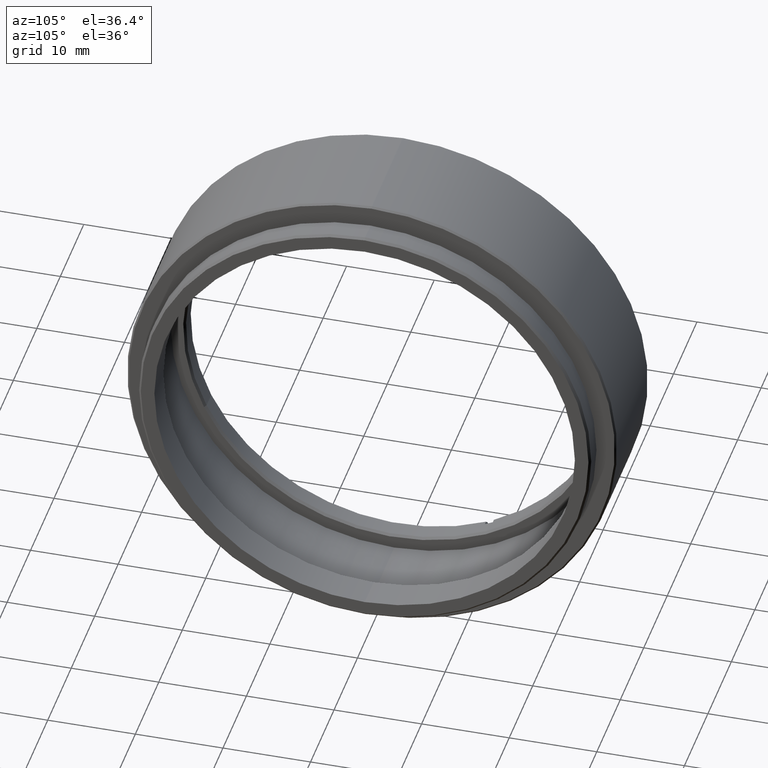
[diagram: clean part render]
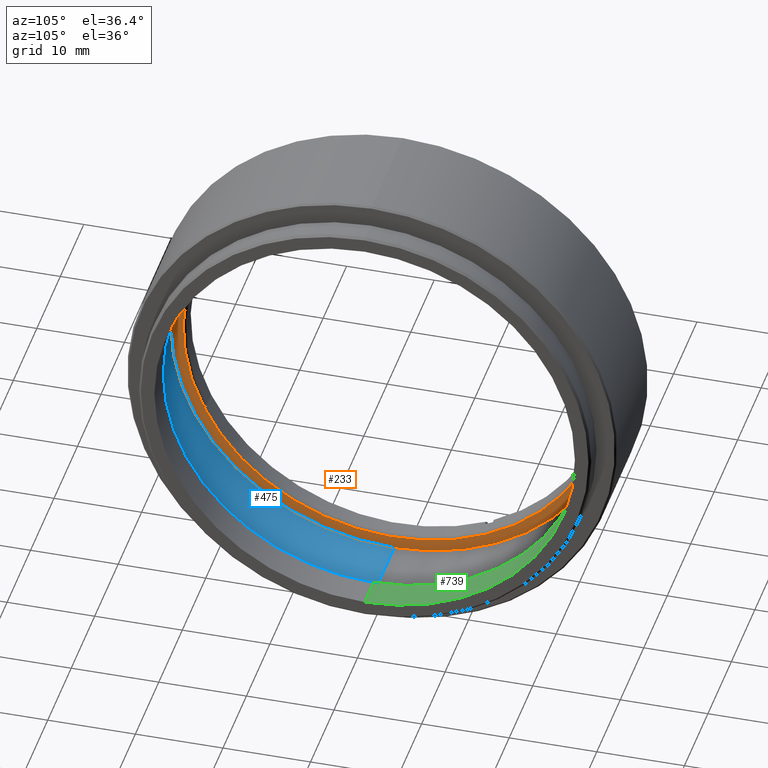
[diagram: same view with three faces highlighted in distinct colors, each labeled with its STEP entity id]
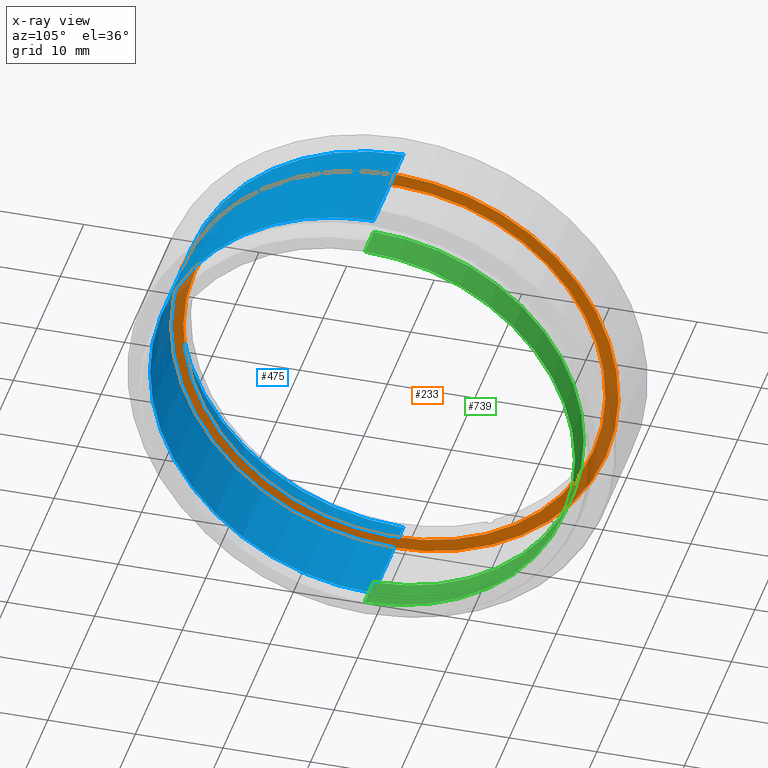
[diagram: x-ray of the same camera — body ghosted, the three highlighted faces saturated]
A machine part, auxiliary view with three faces highlighted in distinct colors.
The next image is the same camera in x-ray (body ghosted, the three faces saturated) — at least one of them is partly hidden behind the body in this view.
Their STEP definitions:

[orange] entity #233 — the highlighted planar face has unit normal (-1, -0, 0).
#9 = CARTESIAN_POINT ( 'NONE',  ( -6.107049834566915081, 2.965124241844183217, 11.07623574862166294 ) ) ;
#33 = VERTEX_POINT ( 'NONE', #480 ) ;
#35 = CARTESIAN_POINT ( 'NONE',  ( -6.107049834566915081, -20.10857142857141966, -3.286487835346685316E-16 ) ) ;
#54 = VERTEX_POINT ( 'NONE', #1538 ) ;
#99 = DIRECTION ( 'NONE',  ( 1.000000000000000000, -0.000000000000000000, -0.000000000000000000 ) ) ;
#105 = DIRECTION ( 'NONE',  ( 0.000000000000000000, -0.9015099208976772305, -0.4327584343754188878 ) ) ;
#133 = EDGE_CURVE ( 'NONE', #625, #54, #1150, .T. ) ;
#233 = ADVANCED_FACE ( 'NONE', ( #406, #587 ), #292, .F. ) ;
#270 = CARTESIAN_POINT ( 'NONE',  ( -6.107049834566915081, -20.10857142857141966, -3.286487835346685316E-16 ) ) ;
#292 = PLANE ( 'NONE',  #1242 ) ;
#366 = DIRECTION ( 'NONE',  ( 0.000000000000000000, -0.9015099208976772305, -0.4327584343754188323 ) ) ;
#401 = DIRECTION ( 'NONE',  ( -1.000000000000000000, -0.000000000000000000, 0.000000000000000000 ) ) ;
#406 = FACE_BOUND ( 'NONE', #1586, .T. ) ;
#419 = EDGE_CURVE ( 'NONE', #607, #33, #1309, .T. ) ;
#478 = EDGE_CURVE ( 'NONE', #54, #625, #1261, .T. ) ;
#480 = CARTESIAN_POINT ( 'NONE',  ( -6.107049834566915081, -43.18226709898702609, -11.07623574862165938 ) ) ;
#531 = DIRECTION ( 'NONE',  ( 0.000000000000000000, -0.9015099208976772305, -0.4327584343754188878 ) ) ;
#541 = DIRECTION ( 'NONE',  ( -1.000000000000000000, 0.000000000000000000, 0.000000000000000000 ) ) ;
#587 = FACE_OUTER_BOUND ( 'NONE', #1652, .T. ) ;
#607 = VERTEX_POINT ( 'NONE', #9 ) ;
#621 = CARTESIAN_POINT ( 'NONE',  ( -6.107049834566915081, -20.10857142857141966, -3.286487835346685316E-16 ) ) ;
#625 = VERTEX_POINT ( 'NONE', #673 ) ;
#628 = CARTESIAN_POINT ( 'NONE',  ( -6.107049834566915081, -20.10857142857141966, -3.286487835346685316E-16 ) ) ;
#673 = CARTESIAN_POINT ( 'NONE',  ( -6.107049834566915081, -41.83000221764049797, -10.42709809705852742 ) ) ;
#833 = ORIENTED_EDGE ( 'NONE', *, *, #133, .T. ) ;
#863 = DIRECTION ( 'NONE',  ( -1.000000000000000000, 0.000000000000000000, 0.000000000000000000 ) ) ;
#874 = CARTESIAN_POINT ( 'NONE',  ( -6.107049834566915081, -20.10857142857141966, -3.286487835346685316E-16 ) ) ;
#884 = ORIENTED_EDGE ( 'NONE', *, *, #419, .T. ) ;
#907 = ORIENTED_EDGE ( 'NONE', *, *, #478, .T. ) ;
#922 = AXIS2_PLACEMENT_3D ( 'NONE', #621, #99, #366 ) ;
#937 = CIRCLE ( 'NONE', #922, 25.59450000000000358 ) ;
#987 = EDGE_CURVE ( 'NONE', #33, #607, #937, .T. ) ;
#1010 = AXIS2_PLACEMENT_3D ( 'NONE', #628, #1126, #1115 ) ;
#1115 = DIRECTION ( 'NONE',  ( 0.000000000000000000, -0.9015099208976772305, -0.4327584343754188323 ) ) ;
#1126 = DIRECTION ( 'NONE',  ( 1.000000000000000000, -0.000000000000000000, -0.000000000000000000 ) ) ;
#1150 = CIRCLE ( 'NONE', #1220, 24.09449999999999648 ) ;
#1151 = AXIS2_PLACEMENT_3D ( 'NONE', #874, #863, #105 ) ;
#1220 = AXIS2_PLACEMENT_3D ( 'NONE', #35, #541, #531 ) ;
#1242 = AXIS2_PLACEMENT_3D ( 'NONE', #270, #401, #1439 ) ;
#1261 = CIRCLE ( 'NONE', #1151, 24.09449999999999648 ) ;
#1309 = CIRCLE ( 'NONE', #1010, 25.59450000000000358 ) ;
#1439 = DIRECTION ( 'NONE',  ( 0.000000000000000000, -0.9015099208976771195, -0.4327584343754188323 ) ) ;
#1504 = ORIENTED_EDGE ( 'NONE', *, *, #987, .T. ) ;
#1538 = CARTESIAN_POINT ( 'NONE',  ( -6.107049834566915081, 1.612859360497660655, 10.42709809705852919 ) ) ;
#1586 = EDGE_LOOP ( 'NONE', ( #907, #833 ) ) ;
#1652 = EDGE_LOOP ( 'NONE', ( #1504, #884 ) ) ;

[blue] entity #475 — the highlighted cylindrical surface (partial cylindrical patch) has radius 25.525 mm, axis along (1, -0, -0).
#201 = ORIENTED_EDGE ( 'NONE', *, *, #1546, .T. ) ;
#231 = CARTESIAN_POINT ( 'NONE',  ( -9.974000000000017963, -20.10857142857141966, 0.000000000000000000 ) ) ;
#236 = CARTESIAN_POINT ( 'NONE',  ( -9.974000000000017963, -20.10857142857141966, 0.000000000000000000 ) ) ;
#253 = CARTESIAN_POINT ( 'NONE',  ( 2.725999999999982659, -20.10857142857141966, -25.52499999999999858 ) ) ;
#286 = CARTESIAN_POINT ( 'NONE',  ( 2.725999999999982659, -20.10857142857141611, 25.52499999999999858 ) ) ;
#287 = VERTEX_POINT ( 'NONE', #307 ) ;
#297 = LINE ( 'NONE', #1166, #1210 ) ;
#307 = CARTESIAN_POINT ( 'NONE',  ( -9.974000000000017963, -20.10857142857141611, 25.52499999999999858 ) ) ;
#318 = DIRECTION ( 'NONE',  ( -1.000000000000000000, 0.000000000000000000, 0.000000000000000000 ) ) ;
#319 = EDGE_LOOP ( 'NONE', ( #1541, #201, #906, #1466 ) ) ;
#415 = CARTESIAN_POINT ( 'NONE',  ( -9.974000000000017963, -20.10857142857141966, -25.52499999999999858 ) ) ;
#475 = ADVANCED_FACE ( 'NONE', ( #567 ), #957, .F. ) ;
#553 = VERTEX_POINT ( 'NONE', #253 ) ;
#567 = FACE_OUTER_BOUND ( 'NONE', #319, .T. ) ;
#611 = EDGE_CURVE ( 'NONE', #1149, #553, #297, .T. ) ;
#732 = AXIS2_PLACEMENT_3D ( 'NONE', #1605, #318, #1614 ) ;
#744 = DIRECTION ( 'NONE',  ( -1.000000000000000000, 0.000000000000000000, 0.000000000000000000 ) ) ;
#754 = EDGE_CURVE ( 'NONE', #553, #1617, #1435, .T. ) ;
#755 = DIRECTION ( 'NONE',  ( 1.000000000000000000, -0.000000000000000000, -0.000000000000000000 ) ) ;
#775 = CIRCLE ( 'NONE', #1120, 25.52499999999999858 ) ;
#875 = DIRECTION ( 'NONE',  ( 0.000000000000000000, 0.000000000000000000, 1.000000000000000000 ) ) ;
#877 = DIRECTION ( 'NONE',  ( 0.000000000000000000, 0.000000000000000000, -1.000000000000000000 ) ) ;
#889 = AXIS2_PLACEMENT_3D ( 'NONE', #231, #1529, #877 ) ;
#906 = ORIENTED_EDGE ( 'NONE', *, *, #754, .F. ) ;
#957 = CYLINDRICAL_SURFACE ( 'NONE', #889, 25.52499999999999858 ) ;
#969 = VECTOR ( 'NONE', #1022, 1000.000000000000000 ) ;
#1007 = EDGE_CURVE ( 'NONE', #1149, #287, #775, .T. ) ;
#1022 = DIRECTION ( 'NONE',  ( 1.000000000000000000, -0.000000000000000000, -0.000000000000000000 ) ) ;
#1120 = AXIS2_PLACEMENT_3D ( 'NONE', #236, #744, #875 ) ;
#1149 = VERTEX_POINT ( 'NONE', #415 ) ;
#1166 = CARTESIAN_POINT ( 'NONE',  ( -9.974000000000017963, -20.10857142857141966, -25.52499999999999858 ) ) ;
#1210 = VECTOR ( 'NONE', #755, 1000.000000000000000 ) ;
#1320 = CARTESIAN_POINT ( 'NONE',  ( -9.974000000000017963, -20.10857142857141611, 25.52499999999999858 ) ) ;
#1321 = LINE ( 'NONE', #1320, #969 ) ;
#1435 = CIRCLE ( 'NONE', #732, 25.52499999999999858 ) ;
#1466 = ORIENTED_EDGE ( 'NONE', *, *, #611, .F. ) ;
#1529 = DIRECTION ( 'NONE',  ( 1.000000000000000000, -0.000000000000000000, -0.000000000000000000 ) ) ;
#1541 = ORIENTED_EDGE ( 'NONE', *, *, #1007, .T. ) ;
#1546 = EDGE_CURVE ( 'NONE', #287, #1617, #1321, .T. ) ;
#1605 = CARTESIAN_POINT ( 'NONE',  ( 2.725999999999982659, -20.10857142857141966, 0.000000000000000000 ) ) ;
#1614 = DIRECTION ( 'NONE',  ( 0.000000000000000000, 0.000000000000000000, 1.000000000000000000 ) ) ;
#1617 = VERTEX_POINT ( 'NONE', #286 ) ;

[green] entity #739 — the highlighted cylindrical surface (partial cylindrical patch) has radius 24 mm, axis along (1, -0, -0).
#37 = AXIS2_PLACEMENT_3D ( 'NONE', #1349, #468, #1235 ) ;
#60 = LINE ( 'NONE', #765, #1384 ) ;
#119 = EDGE_LOOP ( 'NONE', ( #763, #361, #1602, #1633 ) ) ;
#203 = VERTEX_POINT ( 'NONE', #1193 ) ;
#345 = CARTESIAN_POINT ( 'NONE',  ( 6.525999999999982926, -20.10857142857141966, -24.00000000000000355 ) ) ;
#348 = EDGE_CURVE ( 'NONE', #831, #203, #1440, .T. ) ;
#361 = ORIENTED_EDGE ( 'NONE', *, *, #348, .F. ) ;
#377 = FACE_OUTER_BOUND ( 'NONE', #119, .T. ) ;
#452 = CARTESIAN_POINT ( 'NONE',  ( 6.525999999999982926, -20.10857142857141611, 24.00000000000000355 ) ) ;
#456 = LINE ( 'NONE', #1604, #1301 ) ;
#468 = DIRECTION ( 'NONE',  ( 1.000000000000000000, 0.000000000000000000, 0.000000000000000000 ) ) ;
#691 = DIRECTION ( 'NONE',  ( 0.000000000000000000, 0.000000000000000000, -1.000000000000000000 ) ) ;
#739 = ADVANCED_FACE ( 'NONE', ( #377 ), #1366, .F. ) ;
#763 = ORIENTED_EDGE ( 'NONE', *, *, #1265, .F. ) ;
#765 = CARTESIAN_POINT ( 'NONE',  ( -9.974000000000017963, -20.10857142857141966, -24.00000000000000355 ) ) ;
#787 = VERTEX_POINT ( 'NONE', #452 ) ;
#831 = VERTEX_POINT ( 'NONE', #844 ) ;
#844 = CARTESIAN_POINT ( 'NONE',  ( 2.725999999999982659, -20.10857142857141966, -24.00000000000000355 ) ) ;
#852 = CIRCLE ( 'NONE', #1257, 24.00000000000000355 ) ;
#1011 = DIRECTION ( 'NONE',  ( 1.000000000000000000, 0.000000000000000000, 0.000000000000000000 ) ) ;
#1075 = CARTESIAN_POINT ( 'NONE',  ( -9.974000000000017963, -20.10857142857141966, 0.000000000000000000 ) ) ;
#1139 = CARTESIAN_POINT ( 'NONE',  ( 6.525999999999982926, -20.10857142857141966, 0.000000000000000000 ) ) ;
#1155 = DIRECTION ( 'NONE',  ( 0.000000000000000000, 0.000000000000000000, -1.000000000000000000 ) ) ;
#1193 = CARTESIAN_POINT ( 'NONE',  ( 2.725999999999982659, -20.10857142857141611, 24.00000000000000355 ) ) ;
#1235 = DIRECTION ( 'NONE',  ( 0.000000000000000000, 0.000000000000000000, -1.000000000000000000 ) ) ;
#1245 = AXIS2_PLACEMENT_3D ( 'NONE', #1075, #1354, #691 ) ;
#1257 = AXIS2_PLACEMENT_3D ( 'NONE', #1139, #1011, #1155 ) ;
#1265 = EDGE_CURVE ( 'NONE', #203, #787, #456, .T. ) ;
#1301 = VECTOR ( 'NONE', #1362, 1000.000000000000000 ) ;
#1342 = EDGE_CURVE ( 'NONE', #1352, #787, #852, .T. ) ;
#1349 = CARTESIAN_POINT ( 'NONE',  ( 2.725999999999982659, -20.10857142857141966, 0.000000000000000000 ) ) ;
#1352 = VERTEX_POINT ( 'NONE', #345 ) ;
#1354 = DIRECTION ( 'NONE',  ( 1.000000000000000000, -0.000000000000000000, -0.000000000000000000 ) ) ;
#1362 = DIRECTION ( 'NONE',  ( 1.000000000000000000, -0.000000000000000000, -0.000000000000000000 ) ) ;
#1366 = CYLINDRICAL_SURFACE ( 'NONE', #1245, 24.00000000000000355 ) ;
#1384 = VECTOR ( 'NONE', #1400, 1000.000000000000000 ) ;
#1400 = DIRECTION ( 'NONE',  ( 1.000000000000000000, -0.000000000000000000, -0.000000000000000000 ) ) ;
#1440 = CIRCLE ( 'NONE', #37, 24.00000000000000355 ) ;
#1481 = EDGE_CURVE ( 'NONE', #831, #1352, #60, .T. ) ;
#1602 = ORIENTED_EDGE ( 'NONE', *, *, #1481, .T. ) ;
#1604 = CARTESIAN_POINT ( 'NONE',  ( -9.974000000000017963, -20.10857142857141611, 24.00000000000000355 ) ) ;
#1633 = ORIENTED_EDGE ( 'NONE', *, *, #1342, .T. ) ;